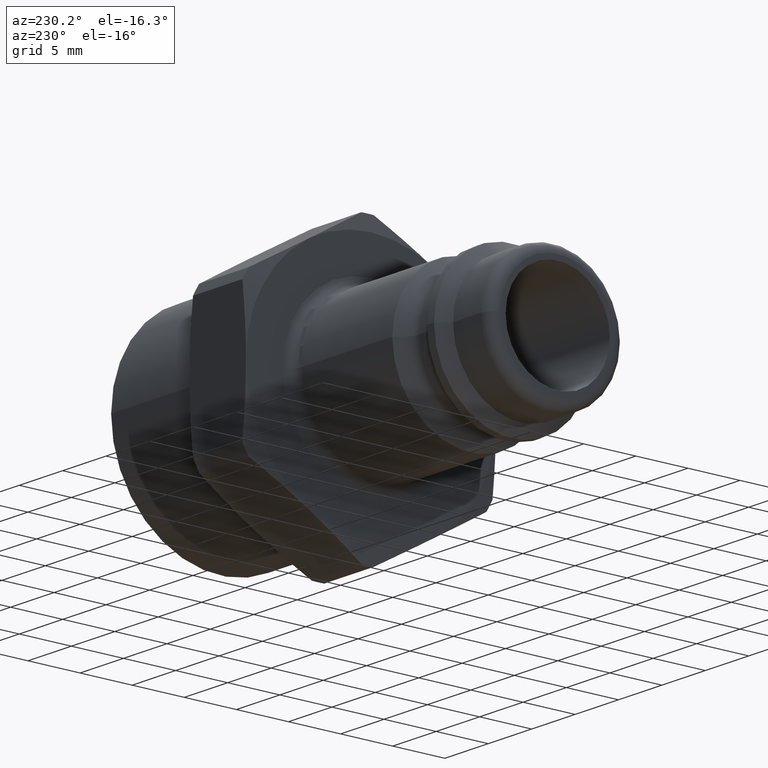
[diagram: clean part render]
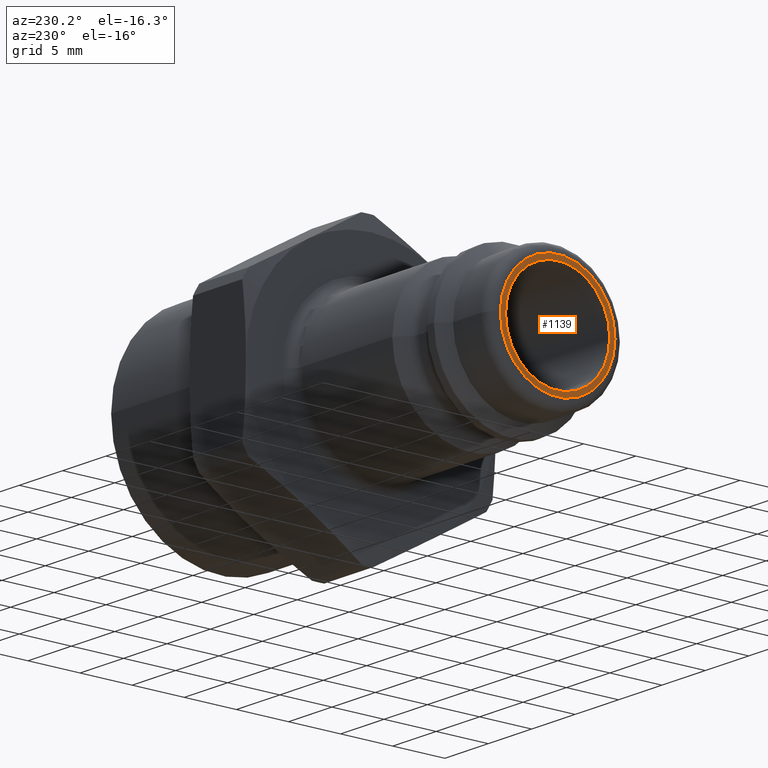
[diagram: same view with one face highlighted and labeled with its STEP entity id]
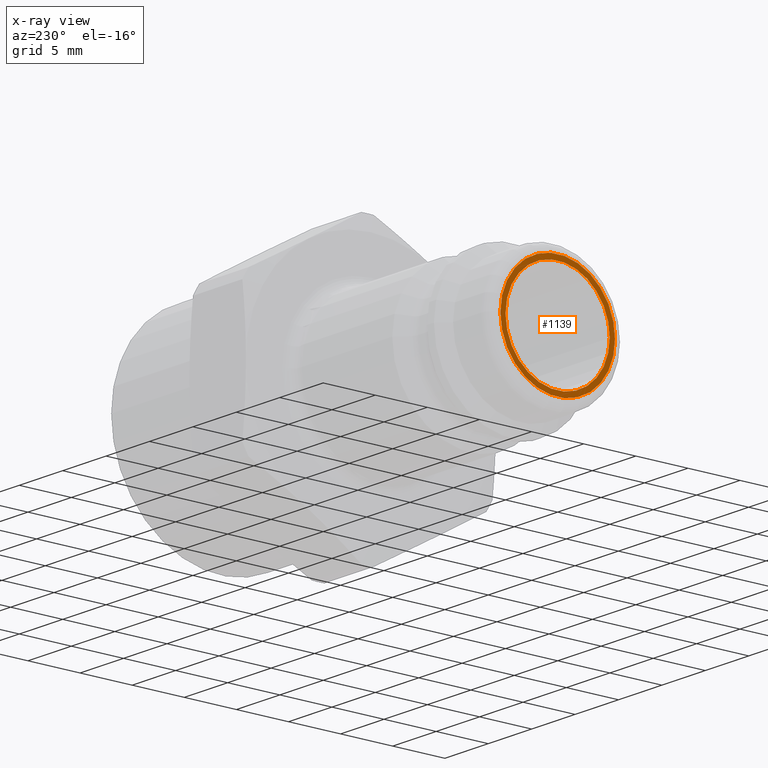
[diagram: x-ray of the same camera — body ghosted, the highlighted face saturated]
A machine part, auxiliary view. The second image highlights one B-rep face of the part: STEP entity #1139.
The next image is the same camera in x-ray: the body ghosted, the highlighted face saturated — about 0% of this face is hidden behind the body in this view.
In plain terms, the highlighted planar face has unit normal (-1, 0, 0).
Its self-contained STEP definition (entity closure, byte-faithful):
#1077=CARTESIAN_POINT('',(-5.551115E-016,5.5,0.0));
#1078=VERTEX_POINT('',#1077);
#1079=CARTESIAN_POINT('',(-5.551115E-016,0.0,0.0));
#1080=DIRECTION('',(1.0,0.0,0.0));
#1081=DIRECTION('',(0.0,-1.0,0.0));
#1082=AXIS2_PLACEMENT_3D('',#1079,#1080,#1081);
#1083=CIRCLE('',#1082,5.5);
#1084=EDGE_CURVE('',#1078,#1078,#1083,.T.);
#1120=CARTESIAN_POINT('',(-5.970153E-016,5.75,0.0));
#1121=DIRECTION('',(-1.0,0.0,0.0));
#1122=DIRECTION('',(0.0,0.0,1.0));
#1123=AXIS2_PLACEMENT_3D('',#1120,#1121,#1122);
#1124=PLANE('',#1123);
#1125=ORIENTED_EDGE('',*,*,#1084,.F.);
#1126=EDGE_LOOP('',(#1125));
#1127=FACE_OUTER_BOUND('',#1126,.T.);
#1128=CARTESIAN_POINT('',(0.0,5.0,0.0));
#1129=VERTEX_POINT('',#1128);
#1130=CARTESIAN_POINT('',(0.0,0.0,0.0));
#1131=DIRECTION('',(1.0,0.0,0.0));
#1132=DIRECTION('',(0.0,1.0,0.0));
#1133=AXIS2_PLACEMENT_3D('',#1130,#1131,#1132);
#1134=CIRCLE('',#1133,5.0);
#1135=EDGE_CURVE('',#1129,#1129,#1134,.T.);
#1136=ORIENTED_EDGE('',*,*,#1135,.T.);
#1137=EDGE_LOOP('',(#1136));
#1138=FACE_BOUND('',#1137,.T.);
#1139=ADVANCED_FACE('',(#1127,#1138),#1124,.T.);